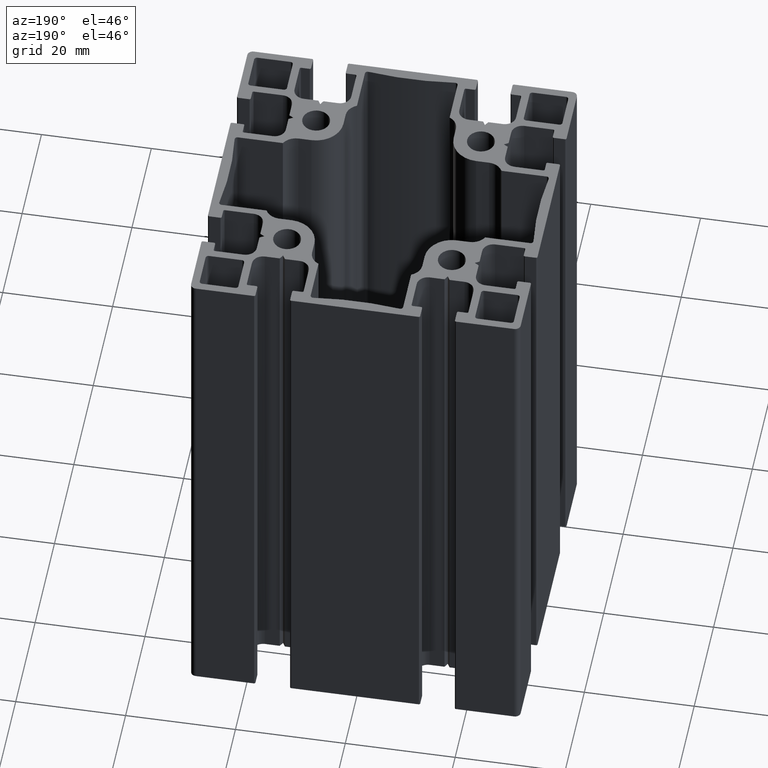
[diagram: clean part render]
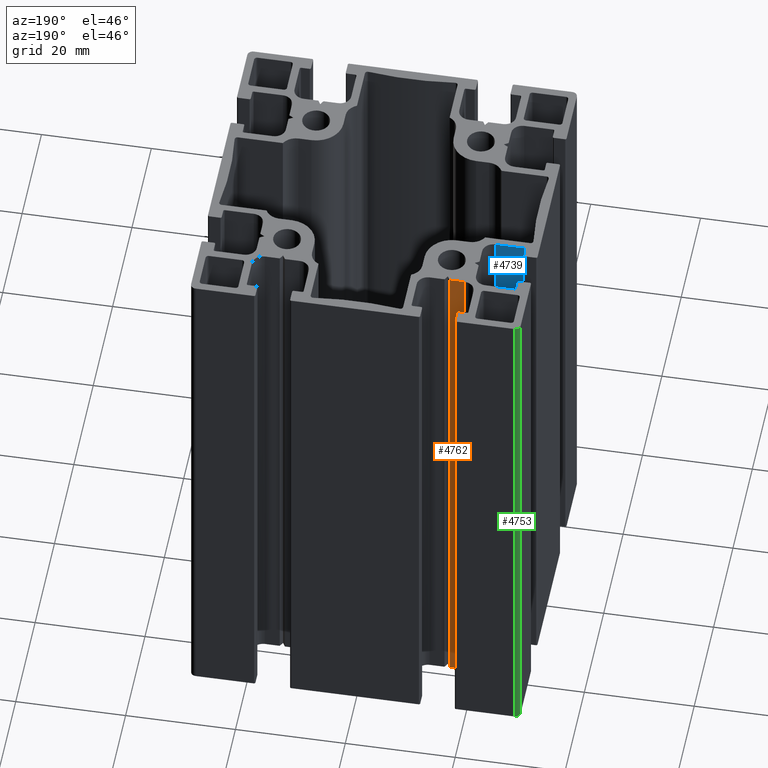
[diagram: same view with three faces highlighted in distinct colors, each labeled with its STEP entity id]
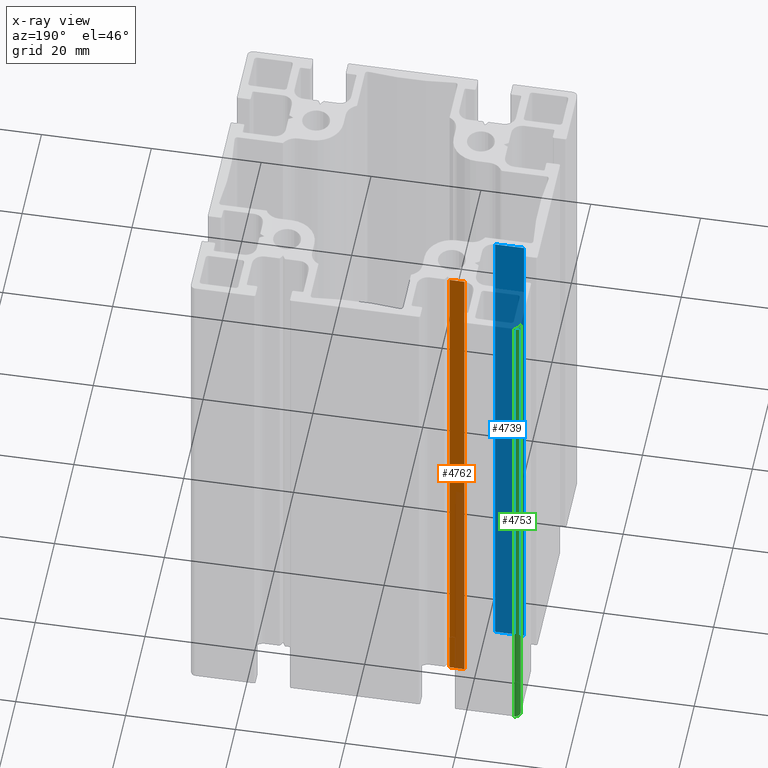
[diagram: x-ray of the same camera — body ghosted, the three highlighted faces saturated]
A machine part, auxiliary view with three faces highlighted in distinct colors.
The next image is the same camera in x-ray (body ghosted, the three faces saturated) — at least one of them is partly hidden behind the body in this view.
Their STEP definitions:

[orange] entity #4762 — the highlighted planar face has unit normal (0, 1, 0).
#594=FACE_OUTER_BOUND('',#836,.T.);
#836=EDGE_LOOP('',(#3883,#3884,#3885,#3886));
#1318=LINE('',#7974,#1798);
#1319=LINE('',#7977,#1799);
#1320=LINE('',#7979,#1800);
#1321=LINE('',#7980,#1801);
#1798=VECTOR('',#6558,100.);
#1799=VECTOR('',#6561,2.69711006686236);
#1800=VECTOR('',#6562,2.69711006686236);
#1801=VECTOR('',#6563,100.);
#2273=VERTEX_POINT('',#7970);
#2274=VERTEX_POINT('',#7972);
#2275=VERTEX_POINT('',#7976);
#2276=VERTEX_POINT('',#7978);
#2962=EDGE_CURVE('',#2273,#2274,#1318,.T.);
#2963=EDGE_CURVE('',#2275,#2273,#1319,.T.);
#2964=EDGE_CURVE('',#2276,#2274,#1320,.T.);
#2965=EDGE_CURVE('',#2275,#2276,#1321,.T.);
#3883=ORIENTED_EDGE('',*,*,#2963,.T.);
#3884=ORIENTED_EDGE('',*,*,#2962,.T.);
#3885=ORIENTED_EDGE('',*,*,#2964,.F.);
#3886=ORIENTED_EDGE('',*,*,#2965,.F.);
#4530=PLANE('',#5214);
#4762=ADVANCED_FACE('',(#594),#4530,.T.);
#5214=AXIS2_PLACEMENT_3D('',#7975,#6559,#6560);
#6558=DIRECTION('',(0.,0.,1.));
#6559=DIRECTION('center_axis',(0.,1.,0.));
#6560=DIRECTION('ref_axis',(-1.,0.,0.));
#6561=DIRECTION('',(-1.,0.,0.));
#6562=DIRECTION('',(-1.,0.,0.));
#6563=DIRECTION('',(0.,0.,1.));
#7970=CARTESIAN_POINT('',(-18.1605345449998,19.9665545549978,0.));
#7972=CARTESIAN_POINT('',(-18.1605345449998,19.9665545549978,100.));
#7974=CARTESIAN_POINT('',(-18.1605345449998,19.9665545549978,0.));
#7975=CARTESIAN_POINT('Origin',(-15.4634244781375,19.9665545549978,0.));
#7976=CARTESIAN_POINT('',(-15.4634244781375,19.9665545549978,0.));
#7977=CARTESIAN_POINT('',(-15.4634244781375,19.9665545549978,0.));
#7978=CARTESIAN_POINT('',(-15.4634244781375,19.9665545549978,100.));
#7979=CARTESIAN_POINT('',(-15.4634244781375,19.9665545549978,100.));
#7980=CARTESIAN_POINT('',(-15.4634244781375,19.9665545549978,0.));

[blue] entity #4739 — the highlighted planar face has unit normal (0, 1, 0).
#571=FACE_OUTER_BOUND('',#813,.T.);
#813=EDGE_LOOP('',(#3791,#3792,#3793,#3794));
#1269=LINE('',#7836,#1749);
#1270=LINE('',#7839,#1750);
#1271=LINE('',#7841,#1751);
#1272=LINE('',#7842,#1752);
#1749=VECTOR('',#6423,100.);
#1750=VECTOR('',#6426,5.26755836250004);
#1751=VECTOR('',#6427,5.26755836250004);
#1752=VECTOR('',#6428,100.);
#2227=VERTEX_POINT('',#7832);
#2228=VERTEX_POINT('',#7834);
#2229=VERTEX_POINT('',#7838);
#2230=VERTEX_POINT('',#7840);
#2893=EDGE_CURVE('',#2227,#2228,#1269,.T.);
#2894=EDGE_CURVE('',#2229,#2227,#1270,.T.);
#2895=EDGE_CURVE('',#2230,#2228,#1271,.T.);
#2896=EDGE_CURVE('',#2229,#2230,#1272,.T.);
#3791=ORIENTED_EDGE('',*,*,#2894,.T.);
#3792=ORIENTED_EDGE('',*,*,#2893,.T.);
#3793=ORIENTED_EDGE('',*,*,#2895,.F.);
#3794=ORIENTED_EDGE('',*,*,#2896,.F.);
#4517=PLANE('',#5171);
#4739=ADVANCED_FACE('',(#571),#4517,.T.);
#5171=AXIS2_PLACEMENT_3D('',#7837,#6424,#6425);
#6423=DIRECTION('',(0.,0.,1.));
#6424=DIRECTION('center_axis',(1.07912271585786E-13,1.,0.));
#6425=DIRECTION('ref_axis',(-1.,1.07824860151595E-13,0.));
#6426=DIRECTION('',(-1.,1.07912271585786E-13,0.));
#6427=DIRECTION('',(-1.,1.07912271585786E-13,0.));
#6428=DIRECTION('',(0.,0.,1.));
#7832=CARTESIAN_POINT('',(-27.2408018174997,9.83277560999923,0.));
#7834=CARTESIAN_POINT('',(-27.2408018174997,9.83277560999923,100.));
#7836=CARTESIAN_POINT('',(-27.2408018174997,9.83277560999923,0.));
#7837=CARTESIAN_POINT('Origin',(-21.9732434549997,9.83277560999866,0.));
#7838=CARTESIAN_POINT('',(-21.9732434549997,9.83277560999866,0.));
#7839=CARTESIAN_POINT('',(-21.9732434549997,9.83277560999866,0.));
#7840=CARTESIAN_POINT('',(-21.9732434549997,9.83277560999866,100.));
#7841=CARTESIAN_POINT('',(-21.9732434549997,9.83277560999866,100.));
#7842=CARTESIAN_POINT('',(-21.9732434549997,9.83277560999866,0.));

[green] entity #4753 — the highlighted cylindrical surface (edge-blend (fillet) strip) has radius 1.0033 mm, axis along (0, 0, 1).
#239=CIRCLE('',#5196,1.00334445000158);
#240=CIRCLE('',#5197,1.00334445000158);
#362=CYLINDRICAL_SURFACE('',#5195,1.00334445000158);
#585=FACE_OUTER_BOUND('',#827,.T.);
#827=EDGE_LOOP('',(#3847,#3848,#3849,#3850));
#1301=LINE('',#7920,#1781);
#1302=LINE('',#7926,#1782);
#1781=VECTOR('',#6503,100.);
#1782=VECTOR('',#6510,100.);
#2255=VERTEX_POINT('',#7916);
#2256=VERTEX_POINT('',#7918);
#2257=VERTEX_POINT('',#7922);
#2258=VERTEX_POINT('',#7924);
#2935=EDGE_CURVE('',#2255,#2256,#1301,.T.);
#2936=EDGE_CURVE('',#2257,#2255,#239,.T.);
#2937=EDGE_CURVE('',#2258,#2256,#240,.T.);
#2938=EDGE_CURVE('',#2257,#2258,#1302,.T.);
#3847=ORIENTED_EDGE('',*,*,#2936,.T.);
#3848=ORIENTED_EDGE('',*,*,#2935,.T.);
#3849=ORIENTED_EDGE('',*,*,#2937,.F.);
#3850=ORIENTED_EDGE('',*,*,#2938,.F.);
#4753=ADVANCED_FACE('',(#585),#362,.T.);
#5195=AXIS2_PLACEMENT_3D('',#7921,#6504,#6505);
#5196=AXIS2_PLACEMENT_3D('',#7923,#6506,#6507);
#5197=AXIS2_PLACEMENT_3D('',#7925,#6508,#6509);
#6503=DIRECTION('',(0.,0.,1.));
#6504=DIRECTION('center_axis',(0.,0.,1.));
#6505=DIRECTION('ref_axis',(0.,1.,0.));
#6506=DIRECTION('center_axis',(0.,0.,1.));
#6507=DIRECTION('ref_axis',(0.,1.,0.));
#6508=DIRECTION('center_axis',(0.,0.,1.));
#6509=DIRECTION('ref_axis',(0.,1.,0.));
#6510=DIRECTION('',(0.,0.,1.));
#7916=CARTESIAN_POINT('',(-29.9999990550026,28.9966546049983,0.));
#7918=CARTESIAN_POINT('',(-29.9999990550026,28.9966546049983,100.));
#7920=CARTESIAN_POINT('',(-29.9999990550026,28.9966546049983,0.));
#7921=CARTESIAN_POINT('Origin',(-28.9966546050011,28.9966546049983,0.));
#7922=CARTESIAN_POINT('',(-28.9966546050011,29.9999990549999,0.));
#7923=CARTESIAN_POINT('Origin',(-28.9966546050011,28.9966546049983,0.));
#7924=CARTESIAN_POINT('',(-28.9966546050011,29.9999990549999,100.));
#7925=CARTESIAN_POINT('Origin',(-28.9966546050011,28.9966546049983,100.));
#7926=CARTESIAN_POINT('',(-28.9966546050011,29.9999990549999,0.));